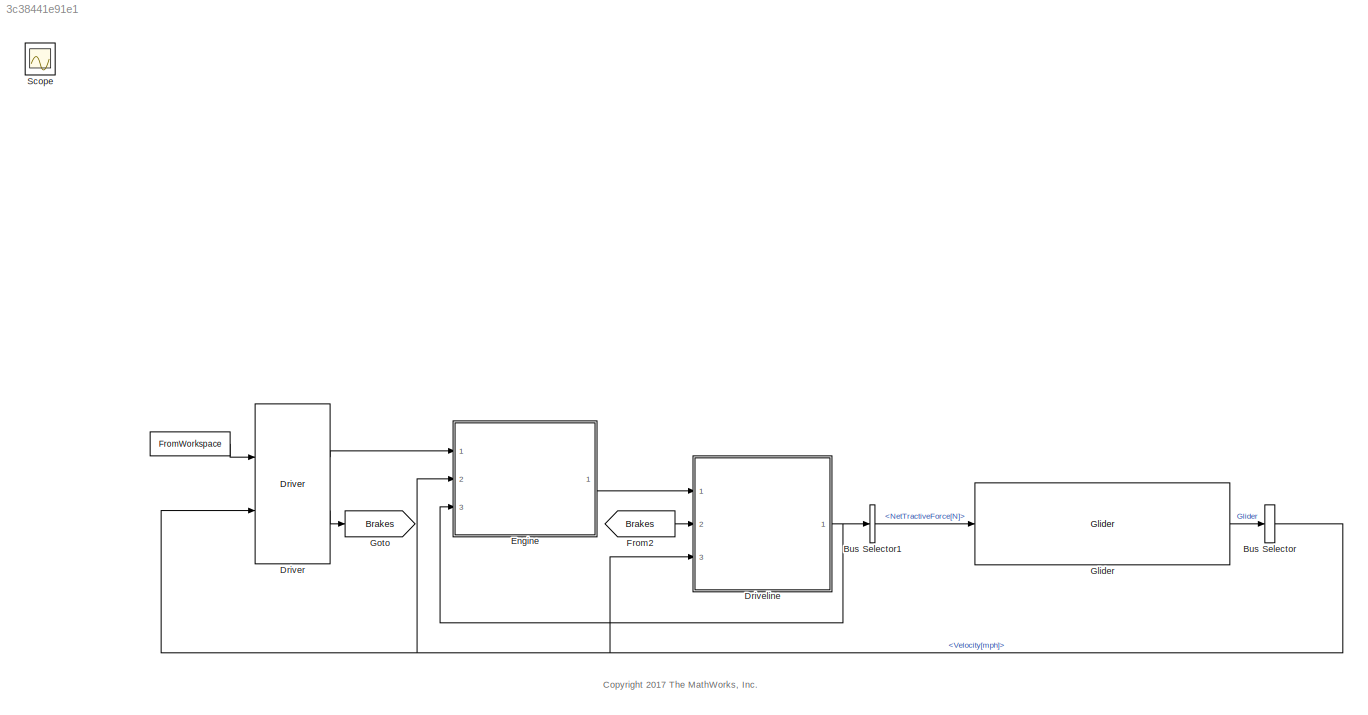
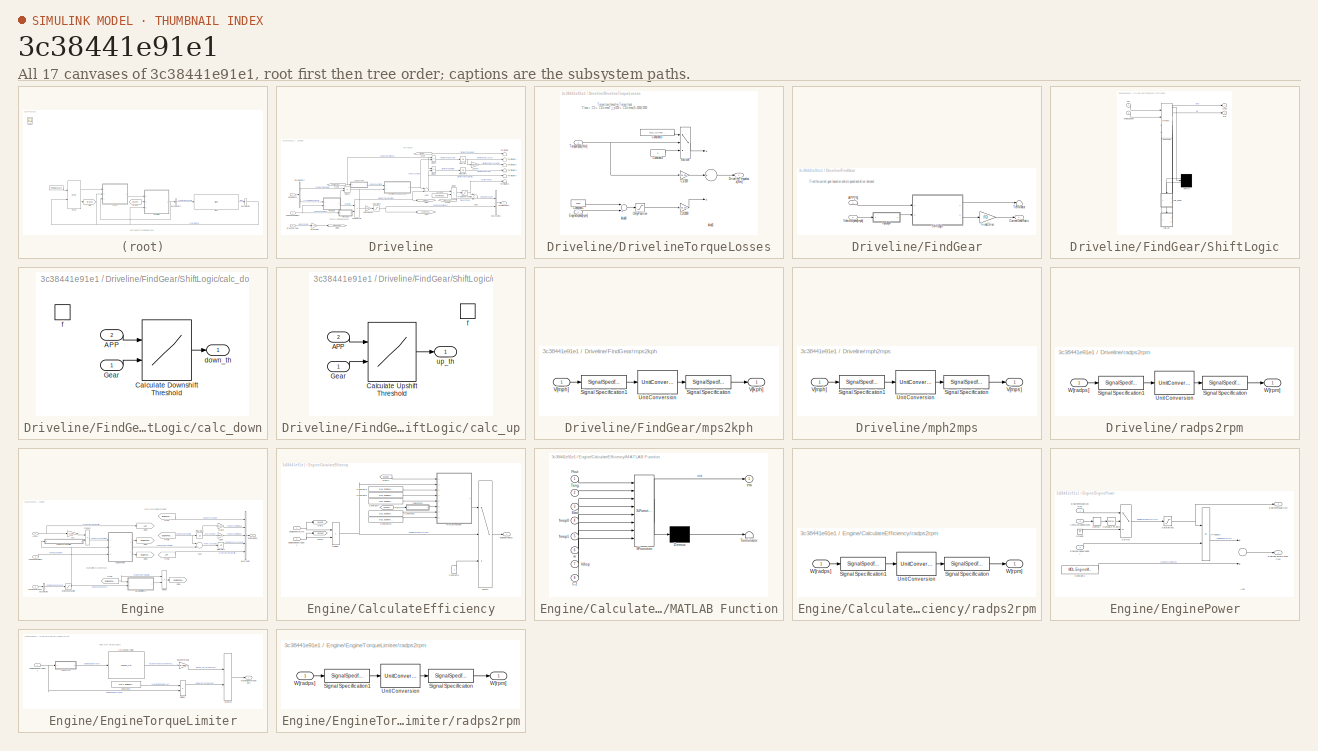
[diagram: thumbnail index - all 17 canvases of the model, root first then tree order]
MODEL slx_3c38441e91e1
KIND model
CONFIG AbsTol = 1
CONFIG EnableMultiTasking = on
CONFIG FixedStep = .1
CONFIG MaxStep = 1
CONFIG MinStep = auto
CONFIG PostLoadFcn = addpath('ImagesConventional')\n\nConventionalDir = pwd;\n\ncd ..\;\nSimulinkDir = pwd;\naddpath(SimulinkDir);\n\ncd(ConventionalDir);
CONFIG RelTol = 1e-3
CONFIG SampleTimeConstraint = Unconstrained
CONFIG Solver = VariableStepAuto
CONFIG SolverName = VariableStepAuto
CONFIG StartTime = 0.0
CONFIG StopTime = TimeUS06
WORKSPACE source: MAT-file member
WORKSPACE DownShiftSpeeds = [11.05 18.7 28.9 38.675 51.425 11.05 18.7 28.9 38.675 51.425 11.05 18.7 ... (85 elements, 5x17)]
BLOCK [FromWorkspace]  
  SampleTime = 0
  Tag = DriveCycle
  VariableName = DrCycles.US06
  ZeroCross = on
BLOCK [BusSelector] Bus Selector
  OutputAsBus = off
  OutputSignals = Velocity[mph]
  Ports = [1, 1]
BLOCK [BusSelector] Bus Selector1
  OutputAsBus = off
  OutputSignals = NetTractiveForce[N]
  Ports = [1, 1]
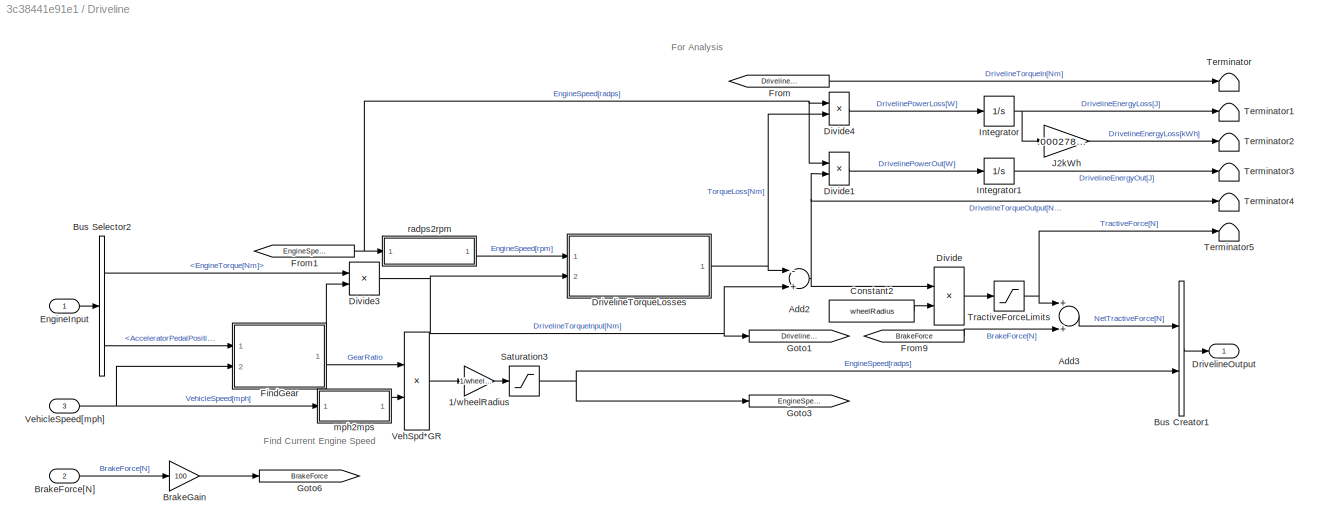
BLOCK [SubSystem] Driveline
  Ports = [3, 1]
  RequestExecContextInheritance = off
BLOCK [Gain] Driveline/1//wheelRadius
  Gain = 1/wheelRadius
  OutDataTypeStr = Inherit: Inherit via internal rule
  ParamDataTypeStr = Inherit: Inherit via internal rule
  SaturateOnIntegerOverflow = off
BLOCK [Sum] Driveline/Add2
  InputSameDT = off
  Inputs = -+
  OutDataTypeStr = Inherit: Inherit via internal rule
  Ports = [2, 1]
  SaturateOnIntegerOverflow = off
BLOCK [Sum] Driveline/Add3
  InputSameDT = off
  OutDataTypeStr = Inherit: Inherit via internal rule
  Ports = [2, 1]
  SaturateOnIntegerOverflow = off
BLOCK [Inport] Driveline/BrakeForce[N]
  IconDisplay = Port number
  Port = 2
BLOCK [Gain] Driveline/BrakeGain
  Gain = 100
  OutDataTypeStr = Inherit: Inherit via internal rule
  ParamDataTypeStr = Inherit: Inherit via internal rule
  SaturateOnIntegerOverflow = off
BLOCK [BusCreator] Driveline/Bus Creator1
  DisplayOption = bar
  InheritFromInputs = on
  Inputs = 2
  Ports = [2, 1]
BLOCK [BusSelector] Driveline/Bus Selector2
  OutputAsBus = off
  OutputSignals = EngineTorque[Nm],AcceleratorPedalPosition[%]
  Ports = [1, 2]
BLOCK [Constant] Driveline/Constant2
  Value = wheelRadius
BLOCK [Product] Driveline/Divide
  InputSameDT = off
  Inputs = */
  OutDataTypeStr = Inherit: Inherit via internal rule
  Ports = [2, 1]
  RndMeth = Floor
  SaturateOnIntegerOverflow = off
BLOCK [Product] Driveline/Divide1
  InputSameDT = off
  Inputs = **
  OutDataTypeStr = Inherit: Inherit via internal rule
  Ports = [2, 1]
  RndMeth = Floor
  SaturateOnIntegerOverflow = off
BLOCK [Product] Driveline/Divide3
  InputSameDT = off
  Inputs = **
  OutDataTypeStr = Inherit: Inherit via internal rule
  Ports = [2, 1]
  RndMeth = Floor
  SaturateOnIntegerOverflow = off
BLOCK [Product] Driveline/Divide4
  InputSameDT = off
  Inputs = **
  OutDataTypeStr = Inherit: Inherit via internal rule
  Ports = [2, 1]
  RndMeth = Floor
  SaturateOnIntegerOverflow = off
BLOCK [Outport] Driveline/DrivelineOutput
  IconDisplay = Port number
BLOCK [SubSystem] Driveline/DrivelineTorqueLosses
  Ports = [2, 1]
  RequestExecContextInheritance = off
BLOCK [Sum] Driveline/DrivelineTorqueLosses/Add1
  InputSameDT = off
  Inputs = +++
  OutDataTypeStr = Inherit: Inherit via internal rule
  Ports = [3, 1]
  SaturateOnIntegerOverflow = off
BLOCK [Sum] Driveline/DrivelineTorqueLosses/Add4
  InputSameDT = off
  Inputs = -+
  OutDataTypeStr = Inherit: Inherit via internal rule
  Ports = [2, 1]
  SaturateOnIntegerOverflow = off
BLOCK [Gain] Driveline/DrivelineTorqueLosses/C1//200
  AttributesFormatString = %<Gain>
  Gain = MDL.DrivelineModel.C1/200
  OutDataTypeStr = Inherit: Inherit via internal rule
  ParamDataTypeStr = Inherit: Inherit via internal rule
  SaturateOnIntegerOverflow = off
BLOCK [Gain] Driveline/DrivelineTorqueLosses/C2//2000
  AttributesFormatString = %<Gain>
  Gain = MDL.DrivelineModel.C2/2000
  OutDataTypeStr = Inherit: Inherit via internal rule
  ParamDataTypeStr = Inherit: Inherit via internal rule
  SaturateOnIntegerOverflow = off
BLOCK [Constant] Driveline/DrivelineTorqueLosses/Constant1
  Value = 2000
BLOCK [Constant] Driveline/DrivelineTorqueLosses/Constant3
  Value = MDL.DrivelineModel.C0
BLOCK [Constant] Driveline/DrivelineTorqueLosses/Constant4
  Value = 0
BLOCK [Outport] Driveline/DrivelineTorqueLosses/DrivelineTorqueLoss[Nm]
  IconDisplay = Port number
BLOCK [Inport] Driveline/DrivelineTorqueLosses/EngineSpeed[rpm]
  IconDisplay = Port number
BLOCK [Saturate] Driveline/DrivelineTorqueLosses/OnlyPositive
  InputPortMap = u0
  LowerLimit = 0
  Ports = [1, 1]
  UpperLimit = inf
BLOCK [Switch] Driveline/DrivelineTorqueLosses/Switch
  Criteria = u2 > Threshold
  InputSameDT = off
  SaturateOnIntegerOverflow = off
  ZeroCross = off
BLOCK [Inport] Driveline/DrivelineTorqueLosses/TorqueInput[Nm]
  IconDisplay = Port number
  Port = 2
BLOCK [Inport] Driveline/EngineInput
  IconDisplay = Port number
BLOCK [SubSystem] Driveline/FindGear
  Ports = [2, 1]
  RequestExecContextInheritance = off
BLOCK [Inport] Driveline/FindGear/APP[%]
  IconDisplay = Port number
BLOCK [Outport] Driveline/FindGear/CurrentGearRatio
  IconDisplay = Port number
BLOCK [Gain] Driveline/FindGear/FinalDrive
  Gain = FD
  OutDataTypeStr = Inherit: Inherit via internal rule
  ParamDataTypeStr = Inherit: Inherit via internal rule
  SaturateOnIntegerOverflow = off
BLOCK [SubSystem] Driveline/FindGear/ShiftLogic
  ErrorFcn = Stateflow.Translate.translate
  PermitHierarchicalResolution = ExplicitOnly
  Ports = [2, 2]
  RequestExecContextInheritance = off
  SFBlockType = Chart
  TreatAsAtomicUnit = on
BLOCK [Demux] Driveline/FindGear/ShiftLogic/ Demux 
  Outputs = 2
  Ports = [1, 2]
BLOCK [S-Function] Driveline/FindGear/ShiftLogic/ SFunction 
  EnableBusSupport = on
  FunctionName = sf_sfun
  Parameters = G1,G2,G3,G4,G5,G6
  PortCounts = [4 7]
  Ports = [4, 7]
  SFcnIsStateOwnerBlock = off
  SFunctionDeploymentMode = off
  Tag = Stateflow S-Function ConventionalVehicle 1
BLOCK [Inport] Driveline/FindGear/ShiftLogic/APP
  IconDisplay = Port number
BLOCK [Outport] Driveline/FindGear/ShiftLogic/GR
  IconDisplay = Port number
  Port = 2
BLOCK [Outport] Driveline/FindGear/ShiftLogic/Gear
  IconDisplay = Port number
BLOCK [Inport] Driveline/FindGear/ShiftLogic/VehicleSpeed
  IconDisplay = Port number
  Port = 2
BLOCK [SubSystem] Driveline/FindGear/ShiftLogic/calc_down
  Ports = [2, 1, 0, 1]
  PreDeleteFcn = Stateflow.SLINSF.SimulinkMan.removePreDeleteFcn
  RequestExecContextInheritance = off
  UndoDeleteFcn = Stateflow.SLINSF.SimulinkMan.restorePreDeleteFcn
BLOCK [Inport] Driveline/FindGear/ShiftLogic/calc_down/APP
  IconDisplay = Port number
  Port = 2
BLOCK [Lookup2D] Driveline/FindGear/ShiftLogic/calc_down/Calculate Downshift Threshold
  ColumnIndex = [2,3,4,5,6]
  InputSameDT = off
  LookUpMeth = Interpolation-Use End Values
  RowIndex = PedalPositions
  SaturateOnIntegerOverflow = off
  Table = DownShiftSpeeds'
BLOCK [Inport] Driveline/FindGear/ShiftLogic/calc_down/Gear
  IconDisplay = Port number
BLOCK [Outport] Driveline/FindGear/ShiftLogic/calc_down/down_th
  IconDisplay = Port number
BLOCK [TriggerPort] Driveline/FindGear/ShiftLogic/calc_down/f
  CopyFcn = Stateflow.SLINSF.SimulinkMan.removeBlockPreDeleteFcn
  Ports = []
  PreDeleteFcn = Stateflow.SLINSF.SimulinkMan.unsafePredeleteFcn
  TriggerType = function-call
  VariantControl = Variant
BLOCK [SubSystem] Driveline/FindGear/ShiftLogic/calc_up
  Ports = [2, 1, 0, 1]
  PreDeleteFcn = Stateflow.SLINSF.SimulinkMan.removePreDeleteFcn
  RequestExecContextInheritance = off
  UndoDeleteFcn = Stateflow.SLINSF.SimulinkMan.restorePreDeleteFcn
BLOCK [Inport] Driveline/FindGear/ShiftLogic/calc_up/APP
  IconDisplay = Port number
  Port = 2
BLOCK [Lookup2D] Driveline/FindGear/ShiftLogic/calc_up/Calculate Upshift Threshold
  ColumnIndex = [1,2,3,4,5]
  InputSameDT = off
  LookUpMeth = Interpolation-Use End Values
  RowIndex = PedalPositions
  SaturateOnIntegerOverflow = off
  Table = UpShiftSpeeds'
BLOCK [Inport] Driveline/FindGear/ShiftLogic/calc_up/Gear
  IconDisplay = Port number
BLOCK [TriggerPort] Driveline/FindGear/ShiftLogic/calc_up/f
  CopyFcn = Stateflow.SLINSF.SimulinkMan.removeBlockPreDeleteFcn
  Ports = []
  PreDeleteFcn = Stateflow.SLINSF.SimulinkMan.unsafePredeleteFcn
  TriggerType = function-call
  VariantControl = Variant
BLOCK [Outport] Driveline/FindGear/ShiftLogic/calc_up/up_th
  IconDisplay = Port number
BLOCK [Terminator] Driveline/FindGear/Terminator
BLOCK [Inport] Driveline/FindGear/VehicleSpeed[mph]
  IconDisplay = Port number
  Port = 2
BLOCK [SubSystem] Driveline/FindGear/mps2kph
  Ports = [1, 1]
  RequestExecContextInheritance = off
BLOCK [SignalSpecification] Driveline/FindGear/mps2kph/Signal Specification
  Unit = km/hr
BLOCK [SignalSpecification] Driveline/FindGear/mps2kph/Signal Specification1
  Unit = mph
BLOCK [UnitConversion] Driveline/FindGear/mps2kph/Unit Conversion
BLOCK [Outport] Driveline/FindGear/mps2kph/V[kph]
  IconDisplay = Port number
BLOCK [Inport] Driveline/FindGear/mps2kph/V[mph]
  IconDisplay = Port number
BLOCK [From] Driveline/From
  GotoTag = DrivelineTorqueIn
BLOCK [From] Driveline/From1
  GotoTag = EngineSpeed
BLOCK [From] Driveline/From9
  GotoTag = BrakeForce
BLOCK [Goto] Driveline/Goto1
  GotoTag = DrivelineTorqueIn
BLOCK [Goto] Driveline/Goto3
  GotoTag = EngineSpeed
BLOCK [Goto] Driveline/Goto6
  GotoTag = BrakeForce
BLOCK [Integrator] Driveline/Integrator
  Ports = [1, 1]
BLOCK [Integrator] Driveline/Integrator1
  Ports = [1, 1]
BLOCK [Gain] Driveline/J2kWh
  Gain = .000278/1000
  OutDataTypeStr = Inherit: Inherit via internal rule
  ParamDataTypeStr = Inherit: Inherit via internal rule
  SaturateOnIntegerOverflow = off
BLOCK [Saturate] Driveline/Saturation3
  InputPortMap = u0
  LowerLimit = 0.001
  Ports = [1, 1]
  UpperLimit = inf
  ZeroCross = off
BLOCK [Terminator] Driveline/Terminator
BLOCK [Terminator] Driveline/Terminator1
BLOCK [Terminator] Driveline/Terminator2
BLOCK [Terminator] Driveline/Terminator3
BLOCK [Terminator] Driveline/Terminator4
BLOCK [Terminator] Driveline/Terminator5
BLOCK [Saturate] Driveline/TractiveForceLimits
  InputPortMap = u0
  LowerLimit = 0
  Ports = [1, 1]
  UpperLimit = MDL.DrivelineModel.Ftr_max
  ZeroCross = off
BLOCK [Product] Driveline/VehSpd*GR
  InputSameDT = off
  Inputs = **
  OutDataTypeStr = Inherit: Inherit via internal rule
  Ports = [2, 1]
  RndMeth = Floor
  SaturateOnIntegerOverflow = off
BLOCK [Inport] Driveline/VehicleSpeed[mph]
  IconDisplay = Port number
  Port = 3
BLOCK [SubSystem] Driveline/mph2mps
  Ports = [1, 1]
  RequestExecContextInheritance = off
BLOCK [SignalSpecification] Driveline/mph2mps/Signal Specification
  Unit = m/s
BLOCK [SignalSpecification] Driveline/mph2mps/Signal Specification1
  Unit = mph
BLOCK [UnitConversion] Driveline/mph2mps/Unit Conversion
BLOCK [Inport] Driveline/mph2mps/V[mph]
  IconDisplay = Port number
BLOCK [Outport] Driveline/mph2mps/V[mps]
  IconDisplay = Port number
BLOCK [SubSystem] Driveline/radps2rpm
  Ports = [1, 1]
  RequestExecContextInheritance = off
BLOCK [SignalSpecification] Driveline/radps2rpm/Signal Specification
  Unit = rpm
BLOCK [SignalSpecification] Driveline/radps2rpm/Signal Specification1
  Unit = rad/s
BLOCK [UnitConversion] Driveline/radps2rpm/Unit Conversion
BLOCK [Inport] Driveline/radps2rpm/W[radps]
  IconDisplay = Port number
BLOCK [Outport] Driveline/radps2rpm/W[rpm]
  IconDisplay = Port number
BLOCK [Reference] Driver  REF=Driver_Glider_Library/Driver
  Ports = [2, 2]
  SourceBlock = Driver_Glider_Library/Driver
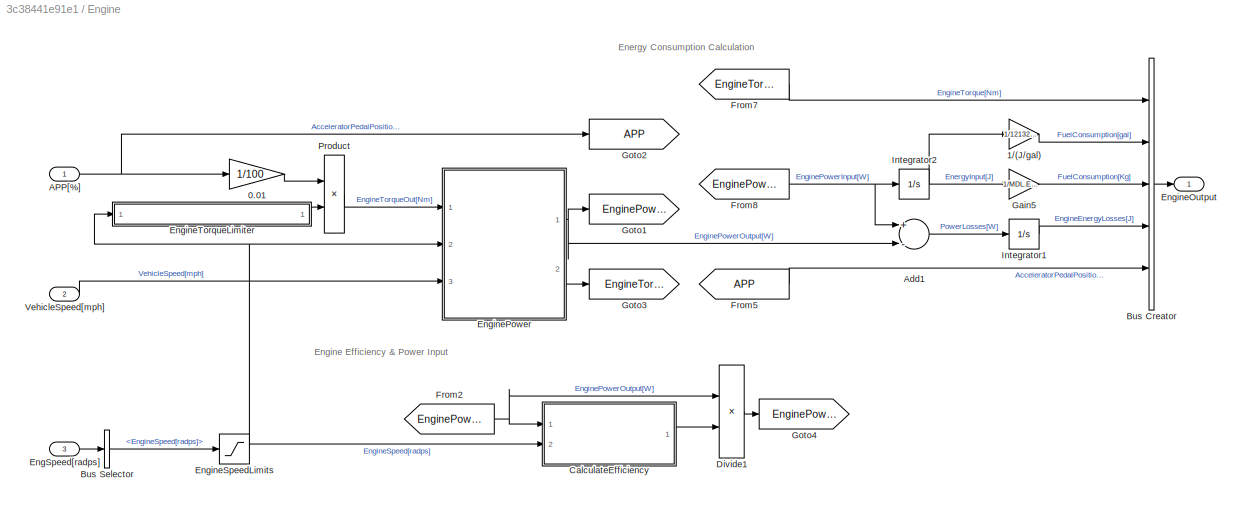
BLOCK [SubSystem] Engine
  Ports = [3, 1]
  RequestExecContextInheritance = off
BLOCK [Gain] Engine/0.01
  Gain = 1/100
  OutDataTypeStr = Inherit: Inherit via internal rule
  ParamDataTypeStr = Inherit: Inherit via internal rule
  SaturateOnIntegerOverflow = off
BLOCK [Gain] Engine/1//(J//gal)
  Gain = 1/121320000
  OutDataTypeStr = Inherit: Inherit via internal rule
  ParamDataTypeStr = Inherit: Inherit via internal rule
  SaturateOnIntegerOverflow = off
BLOCK [Inport] Engine/APP[%]
  IconDisplay = Port number
BLOCK [Sum] Engine/Add1
  InputSameDT = off
  Inputs = +-
  OutDataTypeStr = Inherit: Inherit via internal rule
  Ports = [2, 1]
  SaturateOnIntegerOverflow = off
BLOCK [BusCreator] Engine/Bus Creator
  DisplayOption = bar
  InheritFromInputs = on
  Inputs = 5
  Ports = [5, 1]
BLOCK [BusSelector] Engine/Bus Selector
  OutputAsBus = off
  OutputSignals = EngineSpeed[radps]
  Ports = [1, 1]
BLOCK [SubSystem] Engine/CalculateEfficiency
  Ports = [2, 1]
  RequestExecContextInheritance = off
BLOCK [Constant] Engine/CalculateEfficiency/Constant1
BLOCK [Constant] Engine/CalculateEfficiency/Constant10
  Value = MDL.EngineModel.C2
BLOCK [Constant] Engine/CalculateEfficiency/Constant3
  Value = MDL.EngineModel.EtaT
BLOCK [Constant] Engine/CalculateEfficiency/Constant6
  Value = MDL.EngineModel.fmep0
BLOCK [Constant] Engine/CalculateEfficiency/Constant7
  Value = MDL.EngineModel.fmep1
BLOCK [Constant] Engine/CalculateEfficiency/Constant8
  Value = MDL.EngineModel.Vdisp
BLOCK [Product] Engine/CalculateEfficiency/Divide2  
  InputSameDT = off
  Inputs = */
  OutDataTypeStr = Inherit: Inherit via internal rule
  Ports = [2, 1]
  RndMeth = Floor
  SaturateOnIntegerOverflow = off
BLOCK [Outport] Engine/CalculateEfficiency/EngineEfficiency
  IconDisplay = Port number
BLOCK [Inport] Engine/CalculateEfficiency/EnginePower[W]
  IconDisplay = Port number
BLOCK [Inport] Engine/CalculateEfficiency/EngineSpeed[radps] 
  IconDisplay = Port number
  Port = 2
BLOCK [From] Engine/CalculateEfficiency/From2
  GotoTag = EngPwr
  TagVisibility = global
BLOCK [From] Engine/CalculateEfficiency/From6
  GotoTag = EngSpd
BLOCK [Goto] Engine/CalculateEfficiency/Goto
  GotoTag = EngPwr
  TagVisibility = global
BLOCK [Goto] Engine/CalculateEfficiency/Goto1
  GotoTag = EngSpd
BLOCK [SubSystem] Engine/CalculateEfficiency/MATLAB Function
  ErrorFcn = Stateflow.Translate.translate
  PermitHierarchicalResolution = ExplicitOnly
  Ports = [8, 1]
  RequestExecContextInheritance = off
  SFBlockType = MATLAB Function
  TreatAsAtomicUnit = on
BLOCK [Demux] Engine/CalculateEfficiency/MATLAB Function/ Demux 
  Outputs = 1
  Ports = [1, 1]
BLOCK [S-Function] Engine/CalculateEfficiency/MATLAB Function/ SFunction 
  EnableBusSupport = on
  FunctionName = sf_sfun
  PortCounts = [8 2]
  Ports = [8, 2]
  SFcnIsStateOwnerBlock = off
  SFunctionDeploymentMode = off
  Tag = Stateflow S-Function ConventionalVehicle 2
BLOCK [Terminator] Engine/CalculateEfficiency/MATLAB Function/ Terminator 
BLOCK [Inport] Engine/CalculateEfficiency/MATLAB Function/C2
  IconDisplay = Port number
  Port = 8
BLOCK [Inport] Engine/CalculateEfficiency/MATLAB Function/Etat
  IconDisplay = Port number
  Port = 3
BLOCK [Inport] Engine/CalculateEfficiency/MATLAB Function/Pout
  IconDisplay = Port number
BLOCK [Inport] Engine/CalculateEfficiency/MATLAB Function/Teng
  IconDisplay = Port number
  Port = 2
BLOCK [Inport] Engine/CalculateEfficiency/MATLAB Function/Vdisp
  IconDisplay = Port number
  Port = 7
BLOCK [Outport] Engine/CalculateEfficiency/MATLAB Function/eta
  IconDisplay = Port number
BLOCK [Inport] Engine/CalculateEfficiency/MATLAB Function/fmep0
  IconDisplay = Port number
  Port = 4
BLOCK [Inport] Engine/CalculateEfficiency/MATLAB Function/fmep1
  IconDisplay = Port number
  Port = 5
BLOCK [Inport] Engine/CalculateEfficiency/MATLAB Function/w
  IconDisplay = Port number
  Port = 6
BLOCK [Switch] Engine/CalculateEfficiency/Switch
  Criteria = u2 > Threshold
  InputSameDT = off
  SaturateOnIntegerOverflow = off
  ZeroCross = off
BLOCK [SubSystem] Engine/CalculateEfficiency/radps2rpm
  Ports = [1, 1]
  RequestExecContextInheritance = off
BLOCK [SignalSpecification] Engine/CalculateEfficiency/radps2rpm/Signal Specification
  Unit = rpm
BLOCK [SignalSpecification] Engine/CalculateEfficiency/radps2rpm/Signal Specification1
  Unit = rad/s
BLOCK [UnitConversion] Engine/CalculateEfficiency/radps2rpm/Unit Conversion
BLOCK [Inport] Engine/CalculateEfficiency/radps2rpm/W[radps]
  IconDisplay = Port number
BLOCK [Outport] Engine/CalculateEfficiency/radps2rpm/W[rpm]
  IconDisplay = Port number
BLOCK [Product] Engine/Divide1
  InputSameDT = off
  Inputs = */
  OutDataTypeStr = Inherit: Inherit via internal rule
  Ports = [2, 1]
  RndMeth = Floor
  SaturateOnIntegerOverflow = off
BLOCK [Inport] Engine/EngSpeed[radps]
  IconDisplay = Port number
  Port = 3
BLOCK [Outport] Engine/EngineOutput
  IconDisplay = Port number
BLOCK [SubSystem] Engine/EnginePower
  Ports = [3, 2]
  RequestExecContextInheritance = off
BLOCK [Sum] Engine/EnginePower/Add
  InputSameDT = off
  OutDataTypeStr = Inherit: Inherit via internal rule
  Ports = [2, 1]
  SaturateOnIntegerOverflow = off
BLOCK [Reference] Engine/EnginePower/Compare To Zero  REF=simulink/Logic and Bit
Operations/Compare
To Zero
  Ports = [1, 1]
  SourceBlock = simulink/Logic and Bit\nOperations/Compare\nTo Zero
  SourceProductBaseCode = SL
  SourceProductName = Simulink
  SourceType = Compare To Zero
BLOCK [Constant] Engine/EnginePower/Constant1
  Value = MDL.EngineModel.AccyLoad
BLOCK [Outport] Engine/EnginePower/EnginePowerOutput[W]
  IconDisplay = Port number
BLOCK [Inport] Engine/EnginePower/EngineSpeed[radps]
  IconDisplay = Port number
  Port = 2
BLOCK [Inport] Engine/EnginePower/EngineTorqueOut[Nm]
  IconDisplay = Port number
BLOCK [Outport] Engine/EnginePower/EngineTorque[Nm]
  IconDisplay = Port number
  Port = 2
BLOCK [Ground] Engine/EnginePower/Ground
BLOCK [Memory] Engine/EnginePower/Memory
BLOCK [Product] Engine/EnginePower/Product1
  InputSameDT = off
  OutDataTypeStr = Inherit: Inherit via internal rule
  Ports = [2, 1]
  SaturateOnIntegerOverflow = off
BLOCK [Saturate] Engine/EnginePower/Saturation1
  InputPortMap = u0
  LowerLimit = 8
  Ports = [1, 1]
  UpperLimit = MDL.EngineModel.MaxTrq
BLOCK [Switch] Engine/EnginePower/Switch
  Criteria = u2 ~= 0
  InputSameDT = off
  SaturateOnIntegerOverflow = off
  Threshold = .5
BLOCK [Inport] Engine/EnginePower/VehicleSpeed[mph]
  IconDisplay = Port number
  Port = 3
BLOCK [Saturate] Engine/EngineSpeedLimits
  InputPortMap = u0
  LowerLimit = 84
  Ports = [1, 1]
  UpperLimit = 940
BLOCK [SubSystem] Engine/EngineTorqueLimiter
  Ports = [1, 1]
  RequestExecContextInheritance = off
BLOCK [Lookup_n-D] Engine/EngineTorqueLimiter/1-D Lookup Table
  BreakpointsForDimension1 = MDL.EngineModel.BMEPtbl(:,1)
  BreakpointsForDimension2 = [1:length(MDL.EngineModel.TrqTbl)]
  NumberOfTableDimensions = 1
  Ports = [1, 1]
  RndMeth = Simplest
  Table = MDL.EngineModel.BMEPtbl(:,2)
BLOCK [Gain] Engine/EngineTorqueLimiter/BMEP2Torque
  AttributesFormatString = %<Gain>
  Gain = MDL.EngineModel.Vdisp/(4*pi)
  OutDataTypeStr = Inherit: Inherit via internal rule
  ParamDataTypeStr = Inherit: Inherit via internal rule
  SaturateOnIntegerOverflow = off
BLOCK [Constant] Engine/EngineTorqueLimiter/Constant2
  Value = MDL.EngineModel.MaxPwr
BLOCK [Product] Engine/EngineTorqueLimiter/Divide2
  InputSameDT = off
  Inputs = */
  OutDataTypeStr = Inherit: Inherit via internal rule
  Ports = [2, 1]
  RndMeth = Floor
  SaturateOnIntegerOverflow = off
BLOCK [Inport] Engine/EngineTorqueLimiter/EngineSpeed[radps]
  IconDisplay = Port number
BLOCK [Outport] Engine/EngineTorqueLimiter/MaxEngineTorque[Nm]
  IconDisplay = Port number
BLOCK [MinMax] Engine/EngineTorqueLimiter/MinMax
  InputSameDT = off
  Inputs = 2
  Ports = [2, 1]
  SaturateOnIntegerOverflow = off
BLOCK [SubSystem] Engine/EngineTorqueLimiter/radps2rpm
  Ports = [1, 1]
  RequestExecContextInheritance = off
BLOCK [SignalSpecification] Engine/EngineTorqueLimiter/radps2rpm/Signal Specification
  Unit = rpm
BLOCK [SignalSpecification] Engine/EngineTorqueLimiter/radps2rpm/Signal Specification1
  Unit = rad/s
BLOCK [UnitConversion] Engine/EngineTorqueLimiter/radps2rpm/Unit Conversion
BLOCK [Inport] Engine/EngineTorqueLimiter/radps2rpm/W[radps]
  IconDisplay = Port number
BLOCK [Outport] Engine/EngineTorqueLimiter/radps2rpm/W[rpm]
  IconDisplay = Port number
BLOCK [From] Engine/From2
  GotoTag = EnginePowerOut
BLOCK [From] Engine/From5
  GotoTag = APP
BLOCK [From] Engine/From7
  GotoTag = EngineTorque
BLOCK [From] Engine/From8
  GotoTag = EnginePowerIn
BLOCK [Gain] Engine/Gain5
  AttributesFormatString = %<Gain>
  Gain = 1/MDL.EngineModel.LHV
  OutDataTypeStr = Inherit: Inherit via internal rule
  ParamDataTypeStr = Inherit: Inherit via internal rule
  SaturateOnIntegerOverflow = off
BLOCK [Goto] Engine/Goto1
  GotoTag = EnginePowerOut
BLOCK [Goto] Engine/Goto2
  GotoTag = APP
BLOCK [Goto] Engine/Goto3
  GotoTag = EngineTorque
BLOCK [Goto] Engine/Goto4
  GotoTag = EnginePowerIn
BLOCK [Integrator] Engine/Integrator1
  Ports = [1, 1]
BLOCK [Integrator] Engine/Integrator2
  Ports = [1, 1]
BLOCK [Product] Engine/Product
  InputSameDT = off
  OutDataTypeStr = Inherit: Inherit via internal rule
  Ports = [2, 1]
  SaturateOnIntegerOverflow = off
BLOCK [Inport] Engine/VehicleSpeed[mph]
  IconDisplay = Port number
  Port = 2
BLOCK [From] From2
  GotoTag = Brakes
BLOCK [Reference] Glider  REF=Driver_Glider_Library/Glider
  Ports = [1, 1]
  SourceBlock = Driver_Glider_Library/Glider
BLOCK [Goto] Goto
  GotoTag = Brakes
BLOCK [Scope] Scope
  Floating = off
  IOType = viewer
  NumInputPorts = 1
  Ports = []
  ScopeSpecificationString = Simulink.scopes.TimeScopeBlockCfg('CurrentConfiguration', extmgr.ConfigurationSet(extmgr.Configuration('Core','General UI',true),extmgr.Configuration('Core','Source UI',true),extmgr.Configuration('Sources','WiredSimulink',true),extmgr.Configuration('Visuals','Time Domain',true,'SerializedDisplays',{struct('MinYLimReal','-10.05216','MaxYLimReal','90.46948','YLabelReal','','MinYLimMag','0.00000','Ma...<+1411ch>
ANNOTATION (root): <copyright redacted>
ANNOTATION Driveline: Find Current Engine Speed
ANNOTATION Driveline: For Analysis
ANNOTATION Driveline/DrivelineTorqueLosses: Torque Loss based on Torque Input Tloss = C0 + C1\timesT_i_n/200 + C2\times(S-2000)/2000
ANNOTATION Driveline/FindGear: Find the current gear based on vehicle speed and driver demand
ANNOTATION Engine: Energy Consumption Calculation
ANNOTATION Engine: Engine Efficiency & Power Input
ANNOTATION Engine/EngineTorqueLimiter: Find Max Torque Limits
LINE  :1 -> Driver:1
LINE Bus Selector1:1 -> Glider:1
NET Bus Selector:1 -> Driveline:3, Driver:2, Engine:2
LINE Driveline/1//wheelRadius:1 -> Driveline/Saturation3:1
NET Driveline/Add2:1 -> Driveline/Divide1:2, Driveline/Divide:1, Driveline/Terminator4:1
LINE Driveline/Add3:1 -> Driveline/Bus Creator1:1
LINE Driveline/BrakeForce[N]:1 -> Driveline/BrakeGain:1
LINE Driveline/BrakeGain:1 -> Driveline/Goto6:1
LINE Driveline/Bus Creator1:1 -> Driveline/DrivelineOutput:1
LINE Driveline/Bus Selector2:1 -> Driveline/Divide3:1
LINE Driveline/Bus Selector2:2 -> Driveline/FindGear:1
LINE Driveline/Constant2:1 -> Driveline/Divide:2
LINE Driveline/Divide1:1 -> Driveline/Integrator1:1
NET Driveline/Divide3:1 -> Driveline/Add2:2, Driveline/DrivelineTorqueLosses:2, Driveline/Goto1:1
LINE Driveline/Divide4:1 -> Driveline/Integrator:1
LINE Driveline/Divide:1 -> Driveline/TractiveForceLimits:1
LINE Driveline/DrivelineTorqueLosses/Add1:1 -> Driveline/DrivelineTorqueLosses/DrivelineTorqueLoss[Nm]:1
LINE Driveline/DrivelineTorqueLosses/Add4:1 -> Driveline/DrivelineTorqueLosses/OnlyPositive:1
LINE Driveline/DrivelineTorqueLosses/C1//200:1 -> Driveline/DrivelineTorqueLosses/Add1:2
LINE Driveline/DrivelineTorqueLosses/C2//2000:1 -> Driveline/DrivelineTorqueLosses/Add1:3
LINE Driveline/DrivelineTorqueLosses/Constant1:1 -> Driveline/DrivelineTorqueLosses/Add4:1
LINE Driveline/DrivelineTorqueLosses/Constant3:1 -> Driveline/DrivelineTorqueLosses/Switch:1
LINE Driveline/DrivelineTorqueLosses/Constant4:1 -> Driveline/DrivelineTorqueLosses/Switch:3
LINE Driveline/DrivelineTorqueLosses/EngineSpeed[rpm]:1 -> Driveline/DrivelineTorqueLosses/Add4:2
LINE Driveline/DrivelineTorqueLosses/OnlyPositive:1 -> Driveline/DrivelineTorqueLosses/C2//2000:1
LINE Driveline/DrivelineTorqueLosses/Switch:1 -> Driveline/DrivelineTorqueLosses/Add1:1
NET Driveline/DrivelineTorqueLosses/TorqueInput[Nm]:1 -> Driveline/DrivelineTorqueLosses/C1//200:1, Driveline/DrivelineTorqueLosses/Switch:2
NET Driveline/DrivelineTorqueLosses:1 -> Driveline/Add2:1, Driveline/Divide4:2
LINE Driveline/EngineInput:1 -> Driveline/Bus Selector2:1
LINE Driveline/FindGear/APP[%]:1 -> Driveline/FindGear/ShiftLogic:1
LINE Driveline/FindGear/FinalDrive:1 -> Driveline/FindGear/CurrentGearRatio:1
LINE Driveline/FindGear/ShiftLogic:1 -> Driveline/FindGear/Terminator:1
LINE Driveline/FindGear/ShiftLogic:2 -> Driveline/FindGear/FinalDrive:1
LINE Driveline/FindGear/VehicleSpeed[mph]:1 -> Driveline/FindGear/mps2kph:1
LINE Driveline/FindGear/mps2kph/Signal Specification1:1 -> Driveline/FindGear/mps2kph/Unit Conversion:1
LINE Driveline/FindGear/mps2kph/Signal Specification:1 -> Driveline/FindGear/mps2kph/V[kph]:1
LINE Driveline/FindGear/mps2kph/Unit Conversion:1 -> Driveline/FindGear/mps2kph/Signal Specification:1
LINE Driveline/FindGear/mps2kph/V[mph]:1 -> Driveline/FindGear/mps2kph/Signal Specification1:1
LINE Driveline/FindGear/mps2kph:1 -> Driveline/FindGear/ShiftLogic:2
NET Driveline/FindGear:1 -> Driveline/Divide3:2, Driveline/VehSpd*GR:1
NET Driveline/From1:1 -> Driveline/Divide1:1, Driveline/Divide4:1, Driveline/radps2rpm:1
LINE Driveline/From9:1 -> Driveline/Add3:2
LINE Driveline/From:1 -> Driveline/Terminator:1
LINE Driveline/Integrator1:1 -> Driveline/Terminator3:1
NET Driveline/Integrator:1 -> Driveline/J2kWh:1, Driveline/Terminator1:1
LINE Driveline/J2kWh:1 -> Driveline/Terminator2:1
NET Driveline/Saturation3:1 -> Driveline/Bus Creator1:2, Driveline/Goto3:1
NET Driveline/TractiveForceLimits:1 -> Driveline/Add3:1, Driveline/Terminator5:1
LINE Driveline/VehSpd*GR:1 -> Driveline/1//wheelRadius:1
NET Driveline/VehicleSpeed[mph]:1 -> Driveline/FindGear:2, Driveline/mph2mps:1
LINE Driveline/mph2mps/Signal Specification1:1 -> Driveline/mph2mps/Unit Conversion:1
LINE Driveline/mph2mps/Signal Specification:1 -> Driveline/mph2mps/V[mps]:1
LINE Driveline/mph2mps/Unit Conversion:1 -> Driveline/mph2mps/Signal Specification:1
LINE Driveline/mph2mps/V[mph]:1 -> Driveline/mph2mps/Signal Specification1:1
LINE Driveline/mph2mps:1 -> Driveline/VehSpd*GR:2
LINE Driveline/radps2rpm/Signal Specification1:1 -> Driveline/radps2rpm/Unit Conversion:1
LINE Driveline/radps2rpm/Signal Specification:1 -> Driveline/radps2rpm/W[rpm]:1
LINE Driveline/radps2rpm/Unit Conversion:1 -> Driveline/radps2rpm/Signal Specification:1
LINE Driveline/radps2rpm/W[radps]:1 -> Driveline/radps2rpm/Signal Specification1:1
LINE Driveline/radps2rpm:1 -> Driveline/DrivelineTorqueLosses:1
NET Driveline:1 -> Bus Selector1:1, Engine:3
LINE Driver:1 -> Engine:1
LINE Driver:2 -> Goto:1
LINE Engine/0.01:1 -> Engine/Product:1
LINE Engine/1//(J//gal):1 -> Engine/Bus Creator:2
NET Engine/APP[%]:1 -> Engine/0.01:1, Engine/Goto2:1
LINE Engine/Add1:1 -> Engine/Integrator1:1
LINE Engine/Bus Creator:1 -> Engine/EngineOutput:1
LINE Engine/Bus Selector:1 -> Engine/EngineSpeedLimits:1
LINE Engine/CalculateEfficiency/Constant10:1 -> Engine/CalculateEfficiency/MATLAB Function:8
LINE Engine/CalculateEfficiency/Constant1:1 -> Engine/CalculateEfficiency/Switch:3
LINE Engine/CalculateEfficiency/Constant3:1 -> Engine/CalculateEfficiency/MATLAB Function:3
LINE Engine/CalculateEfficiency/Constant6:1 -> Engine/CalculateEfficiency/MATLAB Function:4
LINE Engine/CalculateEfficiency/Constant7:1 -> Engine/CalculateEfficiency/MATLAB Function:5
LINE Engine/CalculateEfficiency/Constant8:1 -> Engine/CalculateEfficiency/MATLAB Function:7
NET Engine/CalculateEfficiency/Divide2  :1 -> Engine/CalculateEfficiency/MATLAB Function:2, Engine/CalculateEfficiency/Switch:2
NET Engine/CalculateEfficiency/EnginePower[W]:1 -> Engine/CalculateEfficiency/Divide2  :1, Engine/CalculateEfficiency/Goto:1
NET Engine/CalculateEfficiency/EngineSpeed[radps] :1 -> Engine/CalculateEfficiency/Divide2  :2, Engine/CalculateEfficiency/Goto1:1
LINE Engine/CalculateEfficiency/From2:1 -> Engine/CalculateEfficiency/MATLAB Function:1
LINE Engine/CalculateEfficiency/From6:1 -> Engine/CalculateEfficiency/radps2rpm:1
LINE Engine/CalculateEfficiency/MATLAB Function:1 -> Engine/CalculateEfficiency/Switch:1
LINE Engine/CalculateEfficiency/Switch:1 -> Engine/CalculateEfficiency/EngineEfficiency:1
LINE Engine/CalculateEfficiency/radps2rpm/Signal Specification1:1 -> Engine/CalculateEfficiency/radps2rpm/Unit Conversion:1
LINE Engine/CalculateEfficiency/radps2rpm/Signal Specification:1 -> Engine/CalculateEfficiency/radps2rpm/W[rpm]:1
LINE Engine/CalculateEfficiency/radps2rpm/Unit Conversion:1 -> Engine/CalculateEfficiency/radps2rpm/Signal Specification:1
LINE Engine/CalculateEfficiency/radps2rpm/W[radps]:1 -> Engine/CalculateEfficiency/radps2rpm/Signal Specification1:1
LINE Engine/CalculateEfficiency/radps2rpm:1 -> Engine/CalculateEfficiency/MATLAB Function:6
LINE Engine/CalculateEfficiency:1 -> Engine/Divide1:2
LINE Engine/Divide1:1 -> Engine/Goto4:1
LINE Engine/EngSpeed[radps]:1 -> Engine/Bus Selector:1
LINE Engine/EnginePower/Add:1 -> Engine/EnginePower/EnginePowerOutput[W]:1
LINE Engine/EnginePower/Compare To Zero:1 -> Engine/EnginePower/Switch:2
LINE Engine/EnginePower/Constant1:1 -> Engine/EnginePower/Add:2
LINE Engine/EnginePower/EngineSpeed[radps]:1 -> Engine/EnginePower/Product1:2
LINE Engine/EnginePower/EngineTorqueOut[Nm]:1 -> Engine/EnginePower/Switch:1
LINE Engine/EnginePower/Ground:1 -> Engine/EnginePower/Switch:3
LINE Engine/EnginePower/Memory:1 -> Engine/EnginePower/Compare To Zero:1
LINE Engine/EnginePower/Product1:1 -> Engine/EnginePower/Add:1
NET Engine/EnginePower/Saturation1:1 -> Engine/EnginePower/EngineTorque[Nm]:1, Engine/EnginePower/Product1:1
LINE Engine/EnginePower/Switch:1 -> Engine/EnginePower/Saturation1:1
LINE Engine/EnginePower/VehicleSpeed[mph]:1 -> Engine/EnginePower/Memory:1
NET Engine/EnginePower:1 -> Engine/Add1:2, Engine/Goto1:1
LINE Engine/EnginePower:2 -> Engine/Goto3:1
NET Engine/EngineSpeedLimits:1 -> Engine/CalculateEfficiency:2, Engine/EnginePower:2, Engine/EngineTorqueLimiter:1
LINE Engine/EngineTorqueLimiter/1-D Lookup Table:1 -> Engine/EngineTorqueLimiter/BMEP2Torque:1
LINE Engine/EngineTorqueLimiter/BMEP2Torque:1 -> Engine/EngineTorqueLimiter/MinMax:1
LINE Engine/EngineTorqueLimiter/Constant2:1 -> Engine/EngineTorqueLimiter/Divide2:1
LINE Engine/EngineTorqueLimiter/Divide2:1 -> Engine/EngineTorqueLimiter/MinMax:2
NET Engine/EngineTorqueLimiter/EngineSpeed[radps]:1 -> Engine/EngineTorqueLimiter/Divide2:2, Engine/EngineTorqueLimiter/radps2rpm:1
LINE Engine/EngineTorqueLimiter/MinMax:1 -> Engine/EngineTorqueLimiter/MaxEngineTorque[Nm]:1
LINE Engine/EngineTorqueLimiter/radps2rpm/Signal Specification1:1 -> Engine/EngineTorqueLimiter/radps2rpm/Unit Conversion:1
LINE Engine/EngineTorqueLimiter/radps2rpm/Signal Specification:1 -> Engine/EngineTorqueLimiter/radps2rpm/W[rpm]:1
LINE Engine/EngineTorqueLimiter/radps2rpm/Unit Conversion:1 -> Engine/EngineTorqueLimiter/radps2rpm/Signal Specification:1
LINE Engine/EngineTorqueLimiter/radps2rpm/W[radps]:1 -> Engine/EngineTorqueLimiter/radps2rpm/Signal Specification1:1
LINE Engine/EngineTorqueLimiter/radps2rpm:1 -> Engine/EngineTorqueLimiter/1-D Lookup Table:1
LINE Engine/EngineTorqueLimiter:1 -> Engine/Product:2
NET Engine/From2:1 -> Engine/CalculateEfficiency:1, Engine/Divide1:1
LINE Engine/From5:1 -> Engine/Bus Creator:5
LINE Engine/From7:1 -> Engine/Bus Creator:1
NET Engine/From8:1 -> Engine/Add1:1, Engine/Integrator2:1
LINE Engine/Gain5:1 -> Engine/Bus Creator:3
LINE Engine/Integrator1:1 -> Engine/Bus Creator:4
NET Engine/Integrator2:1 -> Engine/1//(J//gal):1, Engine/Gain5:1
LINE Engine/Product:1 -> Engine/EnginePower:1
LINE Engine/VehicleSpeed[mph]:1 -> Engine/EnginePower:3
LINE Engine:1 -> Driveline:1
LINE From2:1 -> Driveline:2
LINE Glider:1 -> Bus Selector:1
note: NET lines group one-source signal fan-out (src -> all destinations, sorted); 1:1 wires keep LINE
CHART Driveline/FindGear/ShiftLogic states=13 transitions=18
  STATE_LABEL 'gear_state'
  STATE_LABEL 'first\nentry:\nGear = 1;\nGR = G1;'
  STATE_LABEL 'second\nentry:\nGear = 2;\nGR = G2;'
  STATE_LABEL 'third\nentry:\nGear = 3;\nGR = G3;'
  STATE_LABEL 'fourth\nentry:\nGear = 4;\nGR = G4;'
  STATE_LABEL 'fifth\nentry:\nGear = 5;\nGR = G5;'
  STATE_LABEL 'sixth\nentry:\nGear = 6;\nGR = G6;'
  STATE_LABEL 'UP'
  STATE_LABEL 'UP'
  STATE_LABEL 'UP'
  STATE_LABEL 'UP'
  STATE_LABEL 'UP'
  STATE_LABEL 'DOWN'
  STATE_LABEL 'DOWN'
  STATE_LABEL 'DOWN'
  STATE_LABEL 'DOWN'
  STATE_LABEL 'DOWN'
  STATE_LABEL 'first\nentry:\nGear = 1;\nGR = G1;'
  STATE_LABEL 'second\nentry:\nGear = 2;\nGR = G2;'
  STATE_LABEL 'third\nentry:\nGear = 3;\nGR = G3;'
  STATE_LABEL 'fourth\nentry:\nGear = 4;\nGR = G4;'
  STATE_LABEL 'fifth\nentry:\nGear = 5;\nGR = G5;'
  STATE_LABEL 'sixth\nentry:\nGear = 6;\nGR = G6;'
  STATE_LABEL 'selection_state\ndu:[up_th]=calc_up(Gear,APP);\ndu:[down_th]=calc_down(Gear,APP);'
  STATE_LABEL 'steady_state'
  STATE_LABEL 'upshifting'
  STATE_LABEL 'downshifting'
  STATE_LABEL '[VehicleSpeed > up_th]'
  STATE_LABEL '[VehicleSpeed < down_th && Gear > 1]'
  STATE_LABEL 'after(1,tick)\n[VehicleSpeed <= down_th]\n{gear_state.DOWN;}'
  STATE_LABEL '[VehicleSpeed > down_th]'
  STATE_LABEL 'after(1,tick)\n[VehicleSpeed >= up_th]\n{gear_state.UP;}'
  STATE_LABEL '[VehicleSpeed < up_th]'
  STATE_LABEL 'steady_state'
  STATE_LABEL 'upshifting'
  STATE_LABEL 'downshifting'
  STATE_LABEL 'up_th = calc_up(Gear,APP)'
  STATE_LABEL 'down_th = calc_down(Gear,APP)'
CHART Engine/CalculateEfficiency/MATLAB Function states=1 transitions=1
  STATE_LABEL 'eML_blk_kernel()'
  STATE_LABEL 'SCRIPT:\nfunction eta = EngineEfficiency(Pout,Teng,Etat,fmep0,fmep1,w,Vdisp,C2)\n%#codegen\n\neta = Pout/(Pout/(Etat/(1+(fmep0+fmep1*w)/(4*pi*Teng/Vdisp)))+C2*Pout^2);'
